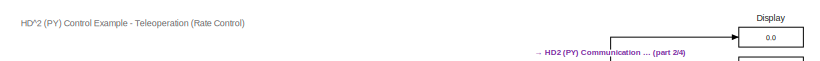
[diagram: root canvas - part 1/4, top left region]
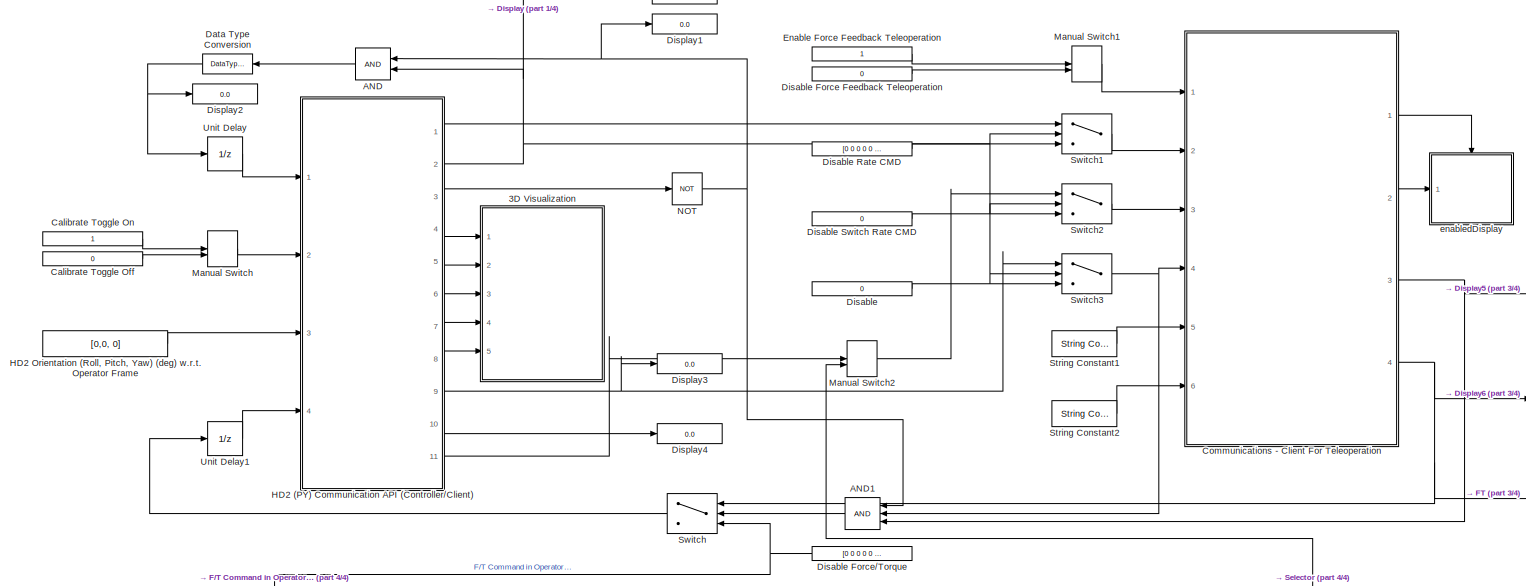
[diagram: root canvas - part 2/4, full width, top band]
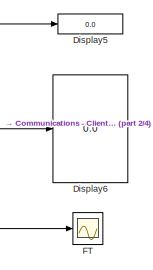
[diagram: root canvas - part 3/4, middle right region]
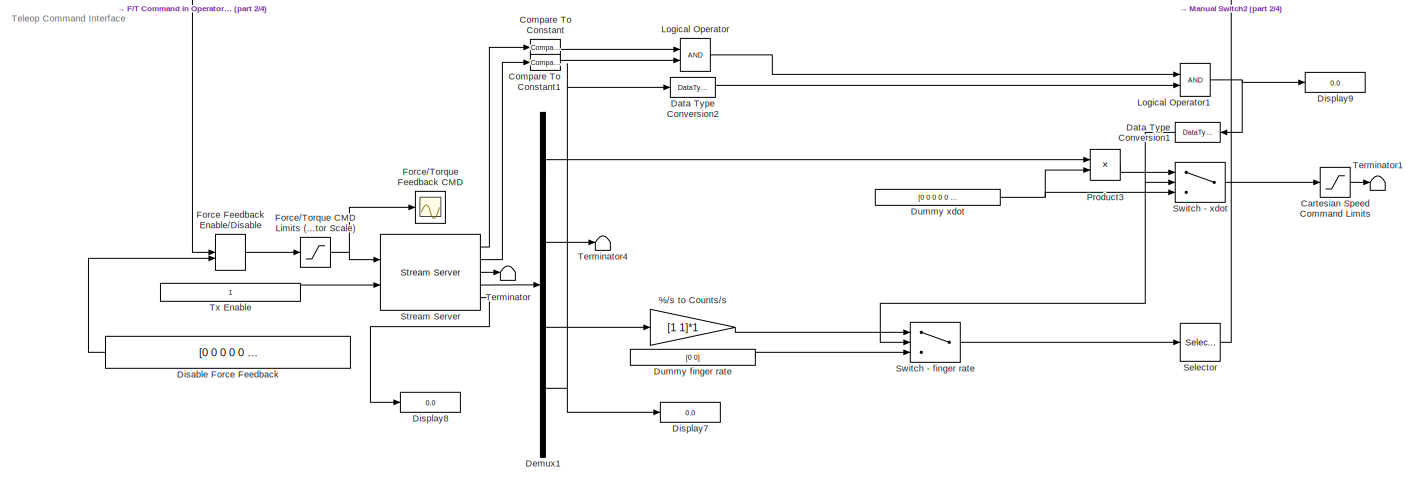
[diagram: root canvas - part 4/4, full width, bottom band]
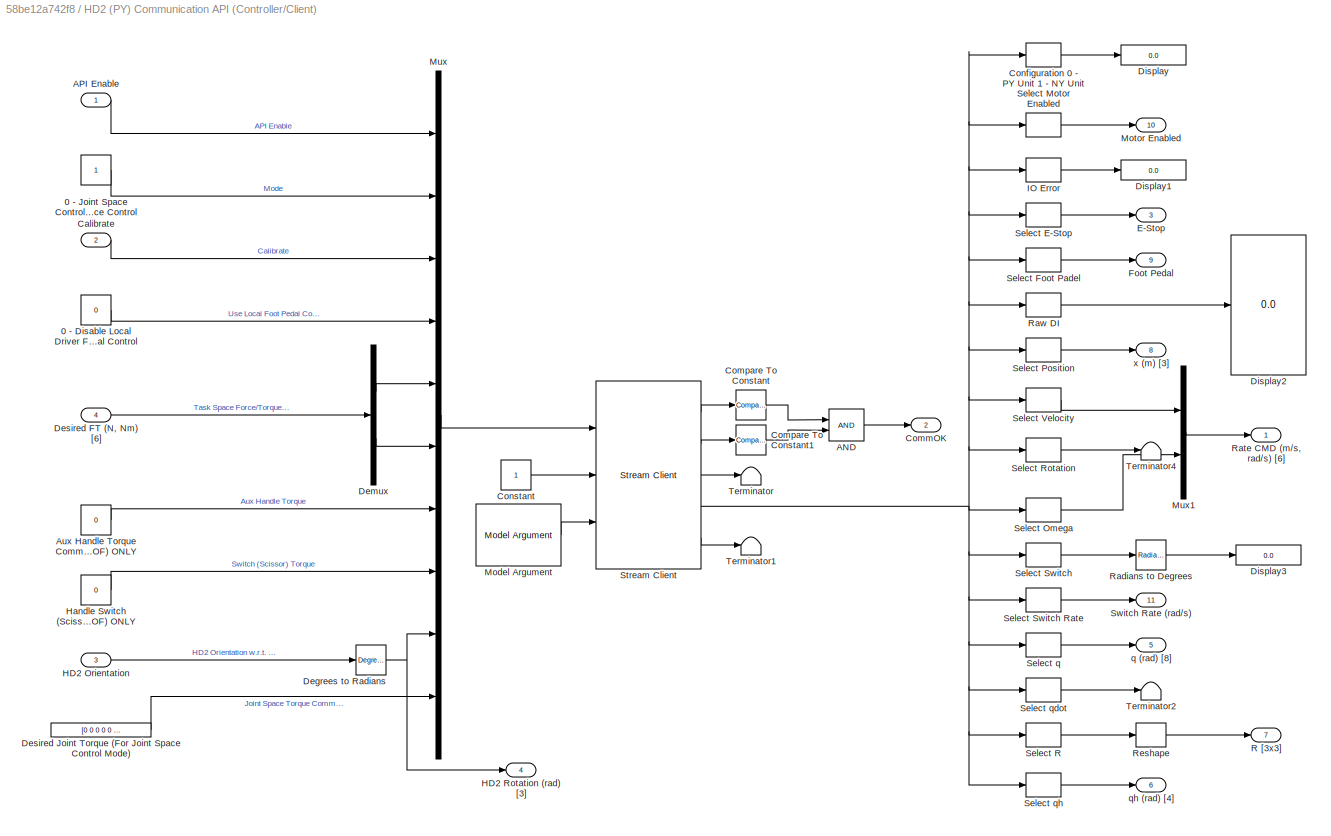
MODEL slx_58be12a742f8
KIND model
CONFIG AbsTol = auto
CONFIG EnableMultiTasking = on
CONFIG FixedStep = 0.001
CONFIG MaxStep = auto
CONFIG MinStep = auto
CONFIG RelTol = 1e-3
CONFIG SampleTimeConstraint = Unconstrained
CONFIG Solver = ode1
CONFIG SolverName = ode1
CONFIG StartTime = 0.0
CONFIG StopTime = inf
WORKSPACE source: MAT-file member
WORKSPACE MCOS: class17 (value not decoded)
BLOCK [Gain] %//s to Counts//s
  Gain = [1 1]*1
  OutDataTypeStr = Inherit: Inherit via internal rule
  ParamDataTypeStr = Inherit: Inherit via internal rule
  SaturateOnIntegerOverflow = off
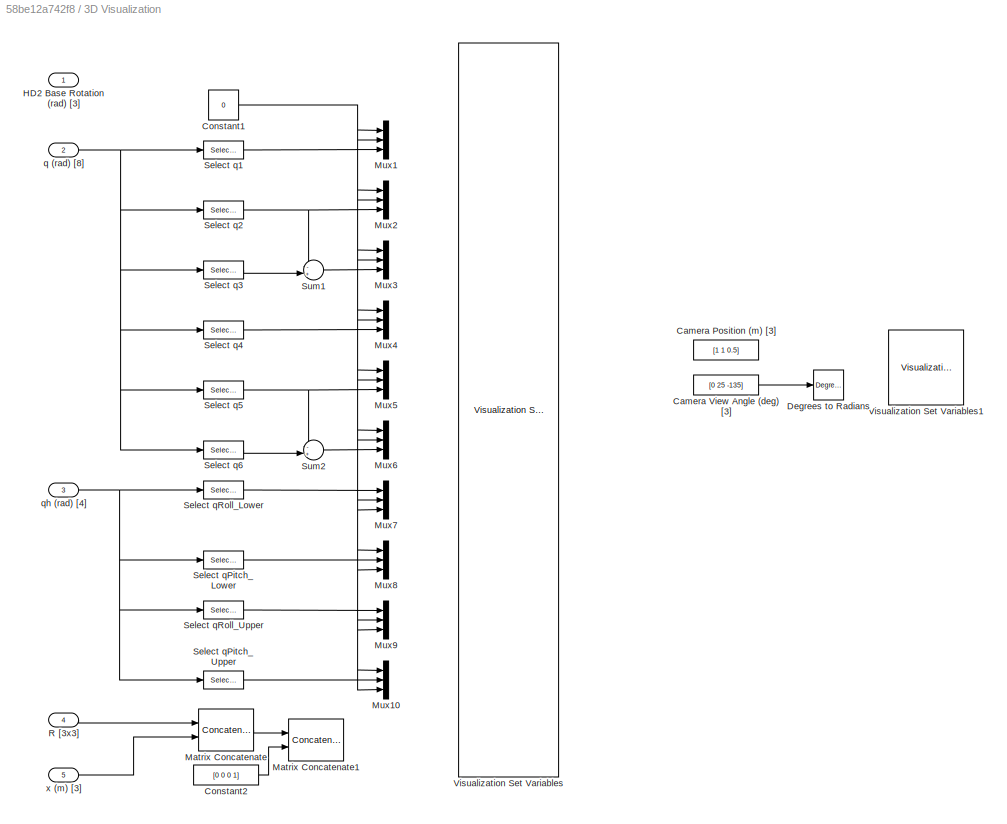
BLOCK [SubSystem] 3D Visualization
  Commented = on
  Ports = [5]
  RequestExecContextInheritance = off
BLOCK [Constant] 3D Visualization/Camera Position (m) [3]
  Value = [1 1 0.5]
  VectorParams1D = off
BLOCK [Constant] 3D Visualization/Camera View Angle (deg) [3]
  Value = [0 25 -135]
  VectorParams1D = off
BLOCK [Constant] 3D Visualization/Constant1
  Value = 0
BLOCK [Constant] 3D Visualization/Constant2
  Value = [0 0 0 1]
  VectorParams1D = off
BLOCK [Reference] 3D Visualization/Degrees to Radians  REF=simulink_extras/Transformations/Degrees to
Radians
  Ports = [1, 1]
  SourceBlock = simulink_extras/Transformations/Degrees to\nRadians
  SourceProductBaseCode = SL
  SourceType = DegreesToRadians
BLOCK [Inport] 3D Visualization/HD2 Base Rotation (rad) [3]
  IconDisplay = Port number
BLOCK [Concatenate] 3D Visualization/Matrix Concatenate
  ConcatenateDimension = 2
  Mode = Multidimensional array
  Ports = [2, 1]
BLOCK [Concatenate] 3D Visualization/Matrix Concatenate1
  Mode = Multidimensional array
  Ports = [2, 1]
BLOCK [Mux] 3D Visualization/Mux1
  DisplayOption = bar
  Inputs = 3
  Ports = [3, 1]
BLOCK [Mux] 3D Visualization/Mux10
  DisplayOption = bar
  Inputs = 3
  Ports = [3, 1]
BLOCK [Mux] 3D Visualization/Mux2
  DisplayOption = bar
  Inputs = 3
  Ports = [3, 1]
BLOCK [Mux] 3D Visualization/Mux3
  DisplayOption = bar
  Inputs = 3
  Ports = [3, 1]
BLOCK [Mux] 3D Visualization/Mux4
  DisplayOption = bar
  Inputs = 3
  Ports = [3, 1]
BLOCK [Mux] 3D Visualization/Mux5
  DisplayOption = bar
  Inputs = 3
  Ports = [3, 1]
BLOCK [Mux] 3D Visualization/Mux6
  DisplayOption = bar
  Inputs = 3
  Ports = [3, 1]
BLOCK [Mux] 3D Visualization/Mux7
  DisplayOption = bar
  Inputs = 3
  Ports = [3, 1]
BLOCK [Mux] 3D Visualization/Mux8
  DisplayOption = bar
  Inputs = 3
  Ports = [3, 1]
BLOCK [Mux] 3D Visualization/Mux9
  DisplayOption = bar
  Inputs = 3
  Ports = [3, 1]
BLOCK [Inport] 3D Visualization/R [3x3]
  IconDisplay = Port number
  Port = 4
BLOCK [Selector] 3D Visualization/Select q1
  IndexOptions = Index vector (dialog)
  Indices = [1]
  InputPortWidth = 8
  OutputSizes = 1
  Ports = [1, 1]
BLOCK [Selector] 3D Visualization/Select q2
  IndexOptions = Index vector (dialog)
  Indices = [2]
  InputPortWidth = 8
  OutputSizes = 1
  Ports = [1, 1]
BLOCK [Selector] 3D Visualization/Select q3
  IndexOptions = Index vector (dialog)
  Indices = [3]
  InputPortWidth = 8
  OutputSizes = 1
  Ports = [1, 1]
BLOCK [Selector] 3D Visualization/Select q4
  IndexOptions = Index vector (dialog)
  Indices = [4]
  InputPortWidth = 8
  OutputSizes = 1
  Ports = [1, 1]
BLOCK [Selector] 3D Visualization/Select q5
  IndexOptions = Index vector (dialog)
  Indices = [5]
  InputPortWidth = 8
  OutputSizes = 1
  Ports = [1, 1]
BLOCK [Selector] 3D Visualization/Select q6
  IndexOptions = Index vector (dialog)
  Indices = [6]
  InputPortWidth = 8
  OutputSizes = 1
  Ports = [1, 1]
BLOCK [Selector] 3D Visualization/Select qPitch_Lower
  IndexOptions = Index vector (dialog)
  Indices = [2]
  InputPortWidth = 4
  OutputSizes = 1
  Ports = [1, 1]
BLOCK [Selector] 3D Visualization/Select qPitch_Upper
  IndexOptions = Index vector (dialog)
  Indices = [4]
  InputPortWidth = 4
  OutputSizes = 1
  Ports = [1, 1]
BLOCK [Selector] 3D Visualization/Select qRoll_Lower
  IndexOptions = Index vector (dialog)
  Indices = [1]
  InputPortWidth = 4
  OutputSizes = 1
  Ports = [1, 1]
BLOCK [Selector] 3D Visualization/Select qRoll_Upper
  IndexOptions = Index vector (dialog)
  Indices = [3]
  InputPortWidth = 4
  OutputSizes = 1
  Ports = [1, 1]
BLOCK [Sum] 3D Visualization/Sum1
  IconShape = round
  InputSameDT = off
  Inputs = -+|
  OutDataTypeStr = Inherit: Inherit via internal rule
  Ports = [2, 1]
  SaturateOnIntegerOverflow = off
BLOCK [Sum] 3D Visualization/Sum2
  IconShape = round
  InputSameDT = off
  Inputs = -+|
  OutDataTypeStr = Inherit: Inherit via internal rule
  Ports = [2, 1]
  SaturateOnIntegerOverflow = off
BLOCK [Reference] 3D Visualization/Visualization Set Variables  REF=quarc_library/User Interface/Visualization/Visualization Set Variables
  AttributesFormatString = (%<object_name>)
  Ports = []
  SourceBlock = quarc_library/User Interface/Visualization/Visualization Set Variables
  SourceProductName = QUARC Targets
  SourceType = Visualization Set Variables
BLOCK [Reference] 3D Visualization/Visualization Set Variables1  REF=quarc_library/User Interface/Visualization/Visualization Set Variables
  AttributesFormatString = (%<object_name>)
  Ports = []
  SourceBlock = quarc_library/User Interface/Visualization/Visualization Set Variables
  SourceProductName = QUARC Targets
  SourceType = Visualization Set Variables
BLOCK [Inport] 3D Visualization/q (rad) [8]
  IconDisplay = Port number
  Port = 2
BLOCK [Inport] 3D Visualization/qh (rad) [4]
  IconDisplay = Port number
  Port = 3
BLOCK [Inport] 3D Visualization/x (m) [3]
  IconDisplay = Port number
  Port = 5
BLOCK [Logic] AND
  AllPortsSameDT = off
  IconShape = distinctive
  OutDataTypeStr = boolean
  Ports = [2, 1]
BLOCK [Logic] AND1
  AllPortsSameDT = off
  IconShape = distinctive
  Inputs = 3
  OutDataTypeStr = boolean
  Ports = [3, 1]
BLOCK [Constant] Calibrate Toggle Off
  Value = 0
BLOCK [Constant] Calibrate Toggle On
BLOCK [Saturate] Cartesian Speed Command Limits
  InputPortMap = u0
  LowerLimit = -1*[0.254 0.254 0.254 0.06 0.06 0.06]
  Ports = [1, 1]
  UpperLimit = [0.254 0.254 0.254 0.06 0.06 0.06]
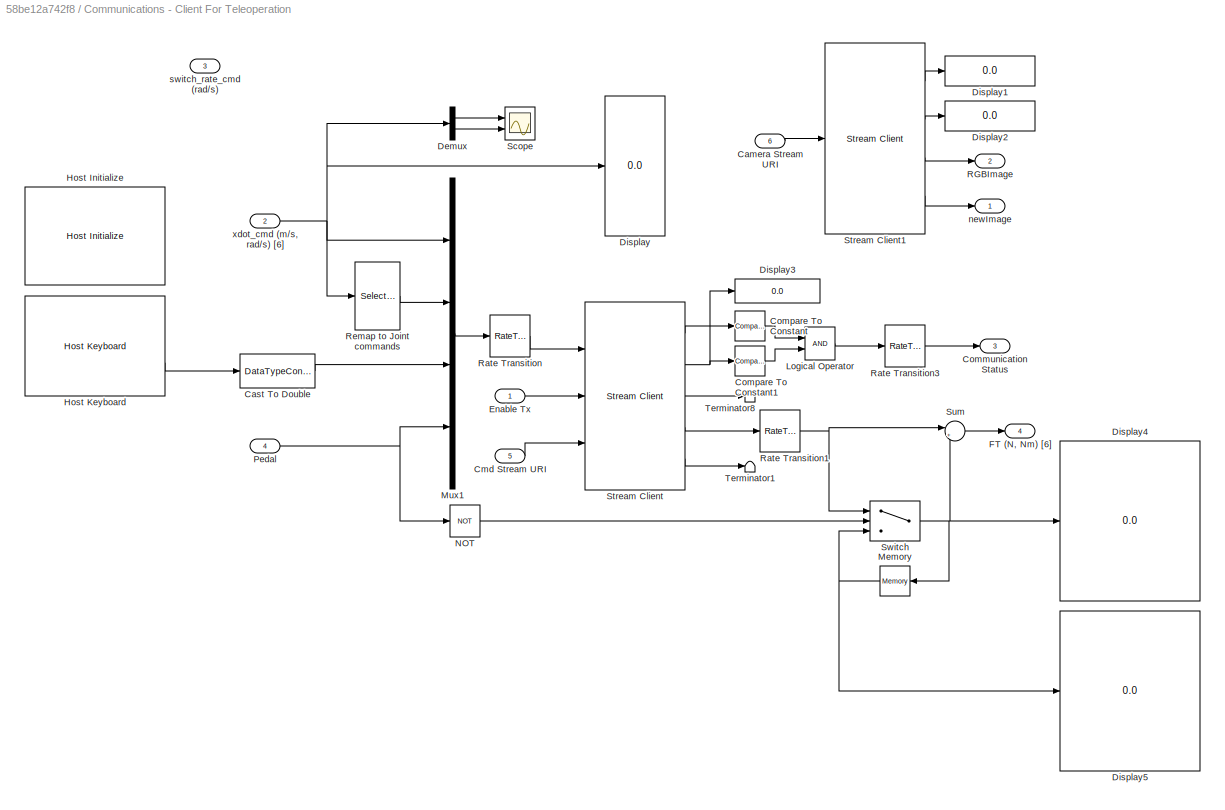
BLOCK [SubSystem] Communications - Client For Teleoperation
  Ports = [6, 4]
  RequestExecContextInheritance = off
BLOCK [Inport] Communications - Client For Teleoperation/Camera Stream URI
  IconDisplay = Port number
  Port = 6
BLOCK [DataTypeConversion] Communications - Client For Teleoperation/Cast To Double
  OutDataTypeStr = double
  RndMeth = Floor
  SaturateOnIntegerOverflow = off
BLOCK [Inport] Communications - Client For Teleoperation/Cmd Stream URI
  IconDisplay = Port number
  Port = 5
BLOCK [Outport] Communications - Client For Teleoperation/Communication Status
  IconDisplay = Port number
  Port = 3
BLOCK [Reference] Communications - Client For Teleoperation/Compare To Constant  REF=simulink/Logic and Bit
Operations/Compare
To Constant
  Ports = [1, 1]
  SourceBlock = simulink/Logic and Bit\nOperations/Compare\nTo Constant
  SourceProductBaseCode = SL
  SourceType = Compare To Constant
BLOCK [Reference] Communications - Client For Teleoperation/Compare To Constant1  REF=simulink/Logic and Bit
Operations/Compare
To Constant
  Ports = [1, 1]
  SourceBlock = simulink/Logic and Bit\nOperations/Compare\nTo Constant
  SourceProductBaseCode = SL
  SourceType = Compare To Constant
BLOCK [Demux] Communications - Client For Teleoperation/Demux
  DisplayOption = bar
  Outputs = 2
  Ports = [1, 2]
BLOCK [Display] Communications - Client For Teleoperation/Display
  Decimation = 1
  Ports = [1]
BLOCK [Display] Communications - Client For Teleoperation/Display1
  Decimation = 1
  Ports = [1]
BLOCK [Display] Communications - Client For Teleoperation/Display2
  Decimation = 1
  Ports = [1]
BLOCK [Display] Communications - Client For Teleoperation/Display3
  Decimation = 500
  Ports = [1]
BLOCK [Display] Communications - Client For Teleoperation/Display4
  Decimation = 1
  Ports = [1]
BLOCK [Display] Communications - Client For Teleoperation/Display5
  Decimation = 1
  Ports = [1]
BLOCK [Inport] Communications - Client For Teleoperation/Enable Tx
  IconDisplay = Port number
BLOCK [Outport] Communications - Client For Teleoperation/FT (N, Nm) [6]
  IconDisplay = Port number
  Port = 4
BLOCK [Reference] Communications - Client For Teleoperation/Host Initialize  REF=quarc_library/Devices/Peripherals/Host/Host Initialize
  Ports = [0, 2]
  SourceBlock = quarc_library/Devices/Peripherals/Host/Host Initialize
  SourceProductName = QUARC Targets
  SourceType = Host Initialize
BLOCK [Reference] Communications - Client For Teleoperation/Host Keyboard  REF=quarc_library/Devices/Peripherals/Host/Host Keyboard
  Ports = [0, 2]
  SourceBlock = quarc_library/Devices/Peripherals/Host/Host Keyboard
  SourceProductName = QUARC Targets
  SourceType = Host Keyboard
BLOCK [Logic] Communications - Client For Teleoperation/Logical Operator
  AllPortsSameDT = off
  OutDataTypeStr = boolean
  Ports = [2, 1]
BLOCK [Reference] Communications - Client For Teleoperation/Memory  REF=quarc_library/Discrete/Memory
  Ports = [1, 1]
  SourceBlock = quarc_library/Discrete/Memory
  SourceProductName = QUARC Targets
  SourceType = Memory
BLOCK [Mux] Communications - Client For Teleoperation/Mux1
  DisplayOption = bar
  Inputs = [6 6 1 1]
  Ports = [4, 1]
BLOCK [Logic] Communications - Client For Teleoperation/NOT
  AllPortsSameDT = off
  IconShape = distinctive
  Operator = NOT
  OutDataTypeStr = boolean
  Ports = [1, 1]
BLOCK [Inport] Communications - Client For Teleoperation/Pedal
  IconDisplay = Port number
  Port = 4
BLOCK [Outport] Communications - Client For Teleoperation/RGBImage
  IconDisplay = Port number
  Port = 2
BLOCK [RateTransition] Communications - Client For Teleoperation/Rate Transition
BLOCK [RateTransition] Communications - Client For Teleoperation/Rate Transition1
BLOCK [RateTransition] Communications - Client For Teleoperation/Rate Transition3
BLOCK [Selector] Communications - Client For Teleoperation/Remap to Joint commands
  IndexOptions = Index vector (dialog)
  Indices = [2,1,3,4,5,6]
  InputPortWidth = 6
  OutputSizes = 1
  Ports = [1, 1]
BLOCK [Scope] Communications - Client For Teleoperation/Scope
  Floating = off
  NumInputPorts = 2
  Ports = [2]
  ScopeSpecificationString = Simulink.scopes.TimeScopeBlockCfg('CurrentConfiguration', extmgr.ConfigurationSet(extmgr.Configuration('Core','General UI',true),extmgr.Configuration('Core','Source UI',true),extmgr.Configuration('Sources','WiredSimulink',true,'DataLoggingVariableName','ScopeData1'),extmgr.Configuration('Visuals','Time Domain',true,'SerializedDisplays',{struct('MinYLimReal','-0.0000000000000061','MaxYLimReal','0.0...<+2142ch>
BLOCK [Reference] Communications - Client For Teleoperation/Stream Client  REF=quarc_library/Communications/Basic/Stream Client
  Ports = [3, 5]
  SourceBlock = quarc_library/Communications/Basic/Stream Client
  SourceProductName = QUARC Targets
  SourceType = Stream Client
BLOCK [Reference] Communications - Client For Teleoperation/Stream Client1  REF=quarc_library/Communications/Basic/Stream Client
  Ports = [1, 4]
  SourceBlock = quarc_library/Communications/Basic/Stream Client
  SourceProductName = QUARC Targets
  SourceType = Stream Client
BLOCK [Sum] Communications - Client For Teleoperation/Sum
  IconShape = round
  InputSameDT = off
  Inputs = |+-
  OutDataTypeStr = Inherit: Inherit via internal rule
  Ports = [2, 1]
  SaturateOnIntegerOverflow = off
BLOCK [Switch] Communications - Client For Teleoperation/Switch
  Criteria = u2 ~= 0
  InputSameDT = off
  SaturateOnIntegerOverflow = off
BLOCK [Terminator] Communications - Client For Teleoperation/Terminator1
BLOCK [Terminator] Communications - Client For Teleoperation/Terminator8
BLOCK [Outport] Communications - Client For Teleoperation/newImage
  IconDisplay = Port number
BLOCK [Inport] Communications - Client For Teleoperation/switch_rate_cmd (rad//s)
  IconDisplay = Port number
  Port = 3
BLOCK [Inport] Communications - Client For Teleoperation/xdot_cmd (m//s, rad//s) [6]
  IconDisplay = Port number
  Port = 2
BLOCK [Reference] Compare To Constant  REF=simulink/Logic and Bit
Operations/Compare
To Constant
  Ports = [1, 1]
  SourceBlock = simulink/Logic and Bit\nOperations/Compare\nTo Constant
  SourceProductBaseCode = SL
  SourceType = Compare To Constant
BLOCK [Reference] Compare To Constant1  REF=simulink/Logic and Bit
Operations/Compare
To Constant
  Ports = [1, 1]
  SourceBlock = simulink/Logic and Bit\nOperations/Compare\nTo Constant
  SourceProductBaseCode = SL
  SourceType = Compare To Constant
BLOCK [DataTypeConversion] Data Type Conversion
  OutDataTypeStr = double
  RndMeth = Floor
  SaturateOnIntegerOverflow = off
BLOCK [DataTypeConversion] Data Type Conversion1
  RndMeth = Floor
  SaturateOnIntegerOverflow = off
BLOCK [DataTypeConversion] Data Type Conversion2
  RndMeth = Floor
  SaturateOnIntegerOverflow = off
BLOCK [Demux] Demux1
  DisplayOption = bar
  Outputs = [6 6 1 1]
  Ports = [1, 4]
BLOCK [Constant] Disable
  Value = 0
BLOCK [Constant] Disable Force Feedback
  Value = [0 0 0 0 0 0]
BLOCK [Constant] Disable Force Feedback Teleoperation
  Value = 0
BLOCK [Constant] Disable Force//Torque
  Value = [0 0 0 0 0 0]
BLOCK [Constant] Disable Rate CMD
  Value = [0 0 0 0 0 0]
BLOCK [Constant] Disable Switch Rate CMD
  Value = 0
BLOCK [Display] Display
  Decimation = 100
  Ports = [1]
BLOCK [Display] Display1
  Decimation = 100
  Ports = [1]
BLOCK [Display] Display2
  Decimation = 100
  Ports = [1]
BLOCK [Display] Display3
  Decimation = 100
  Ports = [1]
BLOCK [Display] Display4
  Decimation = 100
  Ports = [1]
BLOCK [Display] Display5
  Decimation = 100
  Ports = [1]
BLOCK [Display] Display6
  Decimation = 1
  Ports = [1]
BLOCK [Display] Display7
  Decimation = 100
  Ports = [1]
BLOCK [Display] Display8
  Decimation = 100
  Ports = [1]
BLOCK [Display] Display9
  Decimation = 100
  Ports = [1]
BLOCK [Constant] Dummy finger rate
  Value = [0 0]
BLOCK [Constant] Dummy xdot
  Value = [0 0 0 0 0 0]
BLOCK [Constant] Enable Force Feedback Teleoperation
BLOCK [Scope] FT
  Floating = off
  NumInputPorts = 1
  Ports = [1]
  ScopeSpecificationString = Simulink.scopes.TimeScopeBlockCfg('CurrentConfiguration', extmgr.ConfigurationSet(extmgr.Configuration('Core','General UI',true),extmgr.Configuration('Core','Source UI',true),extmgr.Configuration('Sources','WiredSimulink',true,'DataLoggingVariableName','ScopeData1'),extmgr.Configuration('Visuals','Time Domain',true,'SerializedDisplays',{struct('MinYLimReal','-2.22488','MaxYLimReal','0.58958','YLab...<+1386ch>
BLOCK [ManualSwitch] Force Feedback Enable//Disable
  CurrentSetting = 0
BLOCK [Saturate] Force//Torque CMD Limits (Operator Scale)
  InputPortMap = u0
  LowerLimit = -1*[3 3 3 0.2 0.2 0.2]
  Ports = [1, 1]
  UpperLimit = [3 3 3 0.2 0.2 0.2]
BLOCK [Scope] Force//Torque Feedback CMD
  Floating = off
  NumInputPorts = 1
  Ports = [1]
  ScopeSpecificationString = Simulink.scopes.TimeScopeBlockCfg('CurrentConfiguration', extmgr.ConfigurationSet(extmgr.Configuration('Core','General UI',true),extmgr.Configuration('Core','Source UI',true),extmgr.Configuration('Sources','WiredSimulink',true,'DataLoggingVariableName','ScopeData2'),extmgr.Configuration('Visuals','Time Domain',true,'SerializedDisplays',{struct('MinYLimReal','-0.24273','MaxYLimReal','0.17479','YLab...<+1430ch>
BLOCK [SubSystem] HD2 (PY) Communication API (Controller//Client)
  Ports = [4, 11]
  RequestExecContextInheritance = off
BLOCK [Constant] HD2 (PY) Communication API (Controller//Client)/0 - Disable Local Driver Foot Pedal Control 1 - Enable Local Driver Foot Pedal Control
  Value = 0
BLOCK [Constant] HD2 (PY) Communication API (Controller//Client)/0 - Joint Space Control 1 - Task Space Control
BLOCK [Logic] HD2 (PY) Communication API (Controller//Client)/AND
  AllPortsSameDT = off
  IconShape = distinctive
  OutDataTypeStr = boolean
  Ports = [2, 1]
BLOCK [Inport] HD2 (PY) Communication API (Controller//Client)/API Enable
  IconDisplay = Port number
BLOCK [Constant] HD2 (PY) Communication API (Controller//Client)/Aux Handle Torque Command (Nm) Mode 1 (6-DOF or 7-DOF) ONLY
  Value = 0
BLOCK [Inport] HD2 (PY) Communication API (Controller//Client)/Calibrate
  IconDisplay = Port number
  Port = 2
BLOCK [Outport] HD2 (PY) Communication API (Controller//Client)/CommOK
  IconDisplay = Port number
  Port = 2
BLOCK [Reference] HD2 (PY) Communication API (Controller//Client)/Compare To Constant  REF=simulink/Logic and Bit
Operations/Compare
To Constant
  Ports = [1, 1]
  SourceBlock = simulink/Logic and Bit\nOperations/Compare\nTo Constant
  SourceProductBaseCode = SL
  SourceType = Compare To Constant
BLOCK [Reference] HD2 (PY) Communication API (Controller//Client)/Compare To Constant1  REF=simulink/Logic and Bit
Operations/Compare
To Constant
  Ports = [1, 1]
  SourceBlock = simulink/Logic and Bit\nOperations/Compare\nTo Constant
  SourceProductBaseCode = SL
  SourceType = Compare To Constant
BLOCK [Selector] HD2 (PY) Communication API (Controller//Client)/Configuration 0 - PY Unit 1 - NY Unit
  IndexOptions = Index vector (dialog)
  Indices = [1]
  InputPortWidth = 56
  OutputSizes = 1
  Ports = [1, 1]
BLOCK [Constant] HD2 (PY) Communication API (Controller//Client)/Constant
BLOCK [Reference] HD2 (PY) Communication API (Controller//Client)/Degrees to Radians  REF=simulink_extras/Transformations/Degrees to
Radians
  Ports = [1, 1]
  SourceBlock = simulink_extras/Transformations/Degrees to\nRadians
  SourceProductBaseCode = SL
  SourceType = DegreesToRadians
BLOCK [Demux] HD2 (PY) Communication API (Controller//Client)/Demux
  DisplayOption = bar
  Outputs = [3 3]
  Ports = [1, 2]
BLOCK [Inport] HD2 (PY) Communication API (Controller//Client)/Desired FT (N, Nm) [6]
  IconDisplay = Port number
  Port = 4
BLOCK [Constant] HD2 (PY) Communication API (Controller//Client)/Desired Joint Torque (For Joint Space Control Mode)
  Value = [0 0 0 0 0 0 0 0]
BLOCK [Display] HD2 (PY) Communication API (Controller//Client)/Display
  Decimation = 100
  Ports = [1]
BLOCK [Display] HD2 (PY) Communication API (Controller//Client)/Display1
  Decimation = 100
  Ports = [1]
BLOCK [Display] HD2 (PY) Communication API (Controller//Client)/Display2
  Decimation = 100
  Ports = [1]
BLOCK [Display] HD2 (PY) Communication API (Controller//Client)/Display3
  Decimation = 100
  Ports = [1]
BLOCK [Outport] HD2 (PY) Communication API (Controller//Client)/E-Stop
  IconDisplay = Port number
  Port = 3
BLOCK [Outport] HD2 (PY) Communication API (Controller//Client)/Foot Pedal
  IconDisplay = Port number
  Port = 9
BLOCK [Inport] HD2 (PY) Communication API (Controller//Client)/HD2 Orientation
  IconDisplay = Port number
  Port = 3
BLOCK [Outport] HD2 (PY) Communication API (Controller//Client)/HD2 Rotation (rad) [3]
  IconDisplay = Port number
  Port = 4
BLOCK [Constant] HD2 (PY) Communication API (Controller//Client)/Handle Switch (Scissor) Torque Command (Nm) Mode 1 (7-DOF) ONLY
  Value = 0
BLOCK [Selector] HD2 (PY) Communication API (Controller//Client)/IO Error
  IndexOptions = Index vector (dialog)
  Indices = [3]
  InputPortWidth = 56
  OutputSizes = 1
  Ports = [1, 1]
BLOCK [Reference] HD2 (PY) Communication API (Controller//Client)/Model Argument  REF=quarc_library/Sources/Signals/Model Argument
  AttributesFormatString = (-%<argument_name>)
  Ports = [0, 1]
  SourceBlock = quarc_library/Sources/Signals/Model Argument
  SourceProductName = QUARC Targets
  SourceType = Model Argument
BLOCK [Outport] HD2 (PY) Communication API (Controller//Client)/Motor Enabled
  IconDisplay = Port number
  Port = 10
BLOCK [Mux] HD2 (PY) Communication API (Controller//Client)/Mux
  DisplayOption = bar
  Inputs = [1 1 1 1 3 3 1 1 3 8]
  Ports = [10, 1]
BLOCK [Mux] HD2 (PY) Communication API (Controller//Client)/Mux1
  DisplayOption = bar
  Inputs = 2
  Ports = [2, 1]
BLOCK [Outport] HD2 (PY) Communication API (Controller//Client)/R [3x3]
  IconDisplay = Port number
  Port = 7
BLOCK [Reference] HD2 (PY) Communication API (Controller//Client)/Radians to Degrees  REF=simulink_extras/Transformations/Radians
to Degrees
  Ports = [1, 1]
  SourceBlock = simulink_extras/Transformations/Radians\nto Degrees
  SourceProductBaseCode = SL
  SourceType = RadiansToDegrees
BLOCK [Outport] HD2 (PY) Communication API (Controller//Client)/Rate CMD (m//s, rad//s) [6]
  IconDisplay = Port number
BLOCK [Selector] HD2 (PY) Communication API (Controller//Client)/Raw DI
  IndexOptions = Index vector (dialog)
  Indices = [6:13]
  InputPortWidth = 56
  OutputSizes = 1
  Ports = [1, 1]
BLOCK [Reshape] HD2 (PY) Communication API (Controller//Client)/Reshape
  OutputDimensionality = Customize
  OutputDimensions = [3,3]
  Ports = [1, 1]
BLOCK [Selector] HD2 (PY) Communication API (Controller//Client)/Select E-Stop
  IndexOptions = Index vector (dialog)
  Indices = [4]
  InputPortWidth = 56
  OutputSizes = 1
  Ports = [1, 1]
BLOCK [Selector] HD2 (PY) Communication API (Controller//Client)/Select Foot Padel
  IndexOptions = Index vector (dialog)
  Indices = [5]
  InputPortWidth = 56
  OutputSizes = 1
  Ports = [1, 1]
BLOCK [Selector] HD2 (PY) Communication API (Controller//Client)/Select Motor Enabled
  IndexOptions = Index vector (dialog)
  Indices = [2]
  InputPortWidth = 56
  OutputSizes = 1
  Ports = [1, 1]
BLOCK [Selector] HD2 (PY) Communication API (Controller//Client)/Select Omega
  IndexOptions = Index vector (dialog)
  Indices = [23:25]
  InputPortWidth = 56
  OutputSizes = 1
  Ports = [1, 1]
BLOCK [Selector] HD2 (PY) Communication API (Controller//Client)/Select Position
  IndexOptions = Index vector (dialog)
  Indices = [14:16]
  InputPortWidth = 56
  OutputSizes = 1
  Ports = [1, 1]
BLOCK [Selector] HD2 (PY) Communication API (Controller//Client)/Select R
  IndexOptions = Index vector (dialog)
  Indices = [44:52]
  InputPortWidth = 56
  OutputSizes = 1
  Ports = [1, 1]
BLOCK [Selector] HD2 (PY) Communication API (Controller//Client)/Select Rotation
  IndexOptions = Index vector (dialog)
  Indices = [20:22]
  InputPortWidth = 56
  OutputSizes = 1
  Ports = [1, 1]
BLOCK [Selector] HD2 (PY) Communication API (Controller//Client)/Select Switch
  IndexOptions = Index vector (dialog)
  Indices = [26]
  InputPortWidth = 56
  OutputSizes = 1
  Ports = [1, 1]
BLOCK [Selector] HD2 (PY) Communication API (Controller//Client)/Select Switch Rate
  IndexOptions = Index vector (dialog)
  Indices = [27]
  InputPortWidth = 56
  OutputSizes = 1
  Ports = [1, 1]
BLOCK [Selector] HD2 (PY) Communication API (Controller//Client)/Select Velocity
  IndexOptions = Index vector (dialog)
  Indices = [17:19]
  InputPortWidth = 56
  OutputSizes = 1
  Ports = [1, 1]
BLOCK [Selector] HD2 (PY) Communication API (Controller//Client)/Select q
  IndexOptions = Index vector (dialog)
  Indices = [28:35]
  InputPortWidth = 56
  OutputSizes = 1
  Ports = [1, 1]
BLOCK [Selector] HD2 (PY) Communication API (Controller//Client)/Select qdot
  IndexOptions = Index vector (dialog)
  Indices = [36:43]
  InputPortWidth = 56
  OutputSizes = 1
  Ports = [1, 1]
BLOCK [Selector] HD2 (PY) Communication API (Controller//Client)/Select qh
  IndexOptions = Index vector (dialog)
  Indices = [53:56]
  InputPortWidth = 56
  OutputSizes = 1
  Ports = [1, 1]
BLOCK [Reference] HD2 (PY) Communication API (Controller//Client)/Stream Client  REF=quarc_library/Communications/Basic/Stream Client
  Ports = [3, 5]
  SourceBlock = quarc_library/Communications/Basic/Stream Client
  SourceProductName = QUARC Targets
  SourceType = Stream Client
BLOCK [Outport] HD2 (PY) Communication API (Controller//Client)/Switch Rate (rad//s)
  IconDisplay = Port number
  Port = 11
BLOCK [Terminator] HD2 (PY) Communication API (Controller//Client)/Terminator
BLOCK [Terminator] HD2 (PY) Communication API (Controller//Client)/Terminator1
BLOCK [Terminator] HD2 (PY) Communication API (Controller//Client)/Terminator2
BLOCK [Terminator] HD2 (PY) Communication API (Controller//Client)/Terminator4
BLOCK [Outport] HD2 (PY) Communication API (Controller//Client)/q (rad) [8]
  IconDisplay = Port number
  Port = 5
BLOCK [Outport] HD2 (PY) Communication API (Controller//Client)/qh (rad) [4]
  IconDisplay = Port number
  Port = 6
BLOCK [Outport] HD2 (PY) Communication API (Controller//Client)/x (m) [3]
  IconDisplay = Port number
  Port = 8
BLOCK [Constant] HD2 Orientation (Roll, Pitch, Yaw) (deg) w.r.t. Operator Frame
  Value = [0,0, 0]
BLOCK [Logic] Logical Operator
  AllPortsSameDT = off
  OutDataTypeStr = boolean
  Ports = [2, 1]
BLOCK [Logic] Logical Operator1
  AllPortsSameDT = off
  OutDataTypeStr = boolean
  Ports = [2, 1]
BLOCK [ManualSwitch] Manual Switch
  CurrentSetting = 0
BLOCK [ManualSwitch] Manual Switch1
BLOCK [ManualSwitch] Manual Switch2
  CurrentSetting = 0
BLOCK [Logic] NOT
  AllPortsSameDT = off
  IconShape = distinctive
  Operator = NOT
  OutDataTypeStr = boolean
  Ports = [1, 1]
BLOCK [Product] Product3
  InputSameDT = off
  OutDataTypeStr = Inherit: Inherit via internal rule
  Ports = [2, 1]
  RndMeth = Floor
  SaturateOnIntegerOverflow = off
BLOCK [Selector] Selector
  IndexOptions = Index vector (dialog)
  Indices = [1]
  InputPortWidth = 2
  OutputSizes = 1
  Ports = [1, 1]
BLOCK [Reference] Stream Server  REF=quarc_library/Communications/Basic/Stream Server
  AttributesFormatString = "tcpip://localhost:18008"
  Ports = [2, 5]
  SourceBlock = quarc_library/Communications/Basic/Stream Server
  SourceProductName = QUARC Targets
  SourceType = Stream Server
BLOCK [Reference] String Constant1  REF=quarc_library/Strings/String Constant
  AttributesFormatString = "tcpip://localhost:18018"
  Ports = [0, 1]
  SourceBlock = quarc_library/Strings/String Constant
  SourceProductName = QUARC Targets
  SourceType = String Constant
BLOCK [Reference] String Constant2  REF=quarc_library/Strings/String Constant
  AttributesFormatString = "tcpip://localhost:18025"
  Ports = [0, 1]
  SourceBlock = quarc_library/Strings/String Constant
  SourceProductName = QUARC Targets
  SourceType = String Constant
BLOCK [Switch] Switch
  Criteria = u2 > Threshold
  InputSameDT = off
  SaturateOnIntegerOverflow = off
  Threshold = 0.5
BLOCK [Switch] Switch - finger rate
  Criteria = u2 ~= 0
  InputSameDT = off
  SaturateOnIntegerOverflow = off
BLOCK [Switch] Switch - xdot
  Criteria = u2 ~= 0
  InputSameDT = off
  SaturateOnIntegerOverflow = off
BLOCK [Switch] Switch1
  Criteria = u2 ~= 0
  InputSameDT = off
  SaturateOnIntegerOverflow = off
  Threshold = 0.5
BLOCK [Switch] Switch2
  Criteria = u2 ~= 0
  InputSameDT = off
  SaturateOnIntegerOverflow = off
  Threshold = 0.5
BLOCK [Switch] Switch3
  Criteria = u2 ~= 0
  InputSameDT = off
  SaturateOnIntegerOverflow = off
  Threshold = 0.5
BLOCK [Terminator] Terminator
BLOCK [Terminator] Terminator1
BLOCK [Terminator] Terminator4
BLOCK [Constant] Tx Enable
BLOCK [UnitDelay] Unit Delay
  InputProcessing = Elements as channels (sample based)
  SampleTime = -1
BLOCK [UnitDelay] Unit Delay1
  InputProcessing = Elements as channels (sample based)
  SampleTime = -1
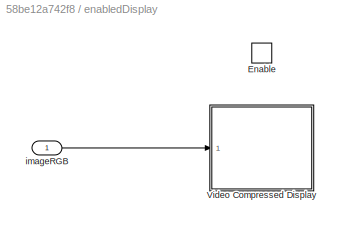
BLOCK [SubSystem] enabledDisplay
  Ports = [1, 0, 1]
  RequestExecContextInheritance = off
  TreatAsAtomicUnit = on
BLOCK [EnablePort] enabledDisplay/Enable
  Ports = []
  PropagateVarSize = During execution
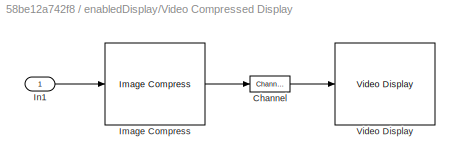
BLOCK [SubSystem] enabledDisplay/Video Compressed Display
  CopyFcn = set_param(gcbh, 'UserData', gcb);\nset_param(gcbh, 'LinkStatus', 'none');
  LoadFcn = set_param(gcbh, 'UserData', gcb);
  NameChangeFcn = video_display_show([get_param(gcbh, 'UserData'), '/Video Display'], 'rename', [gcb, '/Video Display']);\nvideo_display_show([gcb, '/Video Display'], 'add', gcb);\nset_param(gcbh, 'UserData', gcb);
  OpenFcn = video_display_show([gcb, '/Video Display'], 'show', gcb);
  Ports = [1]
  PreDeleteFcn = video_display_show([gcb, '/Video Display'], 'delete');
  RequestExecContextInheritance = off
  StartFcn = video_display_show([gcb, '/Video Display'], 'add', gcb);
  UndoDeleteFcn = set_param(gcbh, 'UserData', gcb);
BLOCK [Reference] enabledDisplay/Video Compressed Display/Channel  REF=quarc_library/Signal Routing/Channel
  Ports = [1, 1]
  SourceBlock = quarc_library/Signal Routing/Channel
  SourceProductName = QUARC Targets
  SourceType = Channel
BLOCK [Reference] enabledDisplay/Video Compressed Display/Image Compress  REF=quarc_library/Image Processing/Generic/Image Compress
  AttributesFormatString = (%<algorithm>)
  Ports = [1, 1]
  SourceBlock = quarc_library/Image Processing/Generic/Image Compress
  SourceProductName = QUARC Targets
  SourceType = Image Compress
BLOCK [Inport] enabledDisplay/Video Compressed Display/In1
  IconDisplay = Port number
BLOCK [Reference] enabledDisplay/Video Compressed Display/Video Display  REF=quarc_library/Multimedia/Video Display
  Ports = [1]
  SourceBlock = quarc_library/Multimedia/Video Display
  SourceProductName = QUARC Targets
  SourceType = Video Display
  Tag = HD2_QArmTeleopClient/enabledDisplay/Video Compressed\nDisplay/Video Display
  UserDataPersistent = on
BLOCK [Inport] enabledDisplay/imageRGB
  IconDisplay = Port number
ANNOTATION (root): HD^2 (PY) Control Example - Teleoperation (Rate Control)
ANNOTATION (root): Teleop Command Interface
LINE %//s to Counts//s:1 -> Switch - finger rate:1
LINE 3D Visualization/Camera View Angle (deg) [3]:1 -> 3D Visualization/Degrees to Radians:1
NET 3D Visualization/Constant1:1 -> 3D Visualization/Mux10:1, 3D Visualization/Mux10:3, 3D Visualization/Mux1:1, 3D Visualization/Mux1:2, 3D Visualization/Mux2:1, 3D Visualization/Mux2:2, 3D Visualization/Mux3:1, 3D Visualization/Mux3:2, 3D Visualization/Mux4:1, 3D Visualization/Mux4:2, 3D Visualization/Mux5:1, 3D Visualization/Mux5:2, 3D Visualization/Mux6:1, 3D Visualization/Mux6:2, 3D Visualization/Mux7:2, 3D Visualization/Mux7:3, 3D Visualization/Mux8:1, 3D Visualization/Mux8:3, 3D Visualization/Mux9:2, 3D Visualization/Mux9:3
LINE 3D Visualization/Constant2:1 -> 3D Visualization/Matrix Concatenate1:2
LINE 3D Visualization/Matrix Concatenate:1 -> 3D Visualization/Matrix Concatenate1:1
LINE 3D Visualization/R [3x3]:1 -> 3D Visualization/Matrix Concatenate:1
LINE 3D Visualization/Select q1:1 -> 3D Visualization/Mux1:3
NET 3D Visualization/Select q2:1 -> 3D Visualization/Mux2:3, 3D Visualization/Sum1:1
LINE 3D Visualization/Select q3:1 -> 3D Visualization/Sum1:2
LINE 3D Visualization/Select q4:1 -> 3D Visualization/Mux4:3
NET 3D Visualization/Select q5:1 -> 3D Visualization/Mux5:3, 3D Visualization/Sum2:1
LINE 3D Visualization/Select q6:1 -> 3D Visualization/Sum2:2
LINE 3D Visualization/Select qPitch_Lower:1 -> 3D Visualization/Mux8:2
LINE 3D Visualization/Select qPitch_Upper:1 -> 3D Visualization/Mux10:2
LINE 3D Visualization/Select qRoll_Lower:1 -> 3D Visualization/Mux7:1
LINE 3D Visualization/Select qRoll_Upper:1 -> 3D Visualization/Mux9:1
LINE 3D Visualization/Sum1:1 -> 3D Visualization/Mux3:3
LINE 3D Visualization/Sum2:1 -> 3D Visualization/Mux6:3
NET 3D Visualization/q (rad) [8]:1 -> 3D Visualization/Select q1:1, 3D Visualization/Select q2:1, 3D Visualization/Select q3:1, 3D Visualization/Select q4:1, 3D Visualization/Select q5:1, 3D Visualization/Select q6:1
NET 3D Visualization/qh (rad) [4]:1 -> 3D Visualization/Select qPitch_Lower:1, 3D Visualization/Select qPitch_Upper:1, 3D Visualization/Select qRoll_Lower:1, 3D Visualization/Select qRoll_Upper:1
LINE 3D Visualization/x (m) [3]:1 -> 3D Visualization/Matrix Concatenate:2
LINE AND1:1 -> Switch:2
LINE AND:1 -> Data Type Conversion:1
LINE Calibrate Toggle Off:1 -> Manual Switch:2
LINE Calibrate Toggle On:1 -> Manual Switch:1
LINE Cartesian Speed Command Limits:1 -> Terminator1:1
LINE Communications - Client For Teleoperation/Camera Stream URI:1 -> Communications - Client For Teleoperation/Stream Client1:1
LINE Communications - Client For Teleoperation/Cast To Double:1 -> Communications - Client For Teleoperation/Mux1:3
LINE Communications - Client For Teleoperation/Cmd Stream URI:1 -> Communications - Client For Teleoperation/Stream Client:3
LINE Communications - Client For Teleoperation/Compare To Constant1:1 -> Communications - Client For Teleoperation/Logical Operator:2
LINE Communications - Client For Teleoperation/Compare To Constant:1 -> Communications - Client For Teleoperation/Logical Operator:1
LINE Communications - Client For Teleoperation/Demux:1 -> Communications - Client For Teleoperation/Scope:1
LINE Communications - Client For Teleoperation/Demux:2 -> Communications - Client For Teleoperation/Scope:2
LINE Communications - Client For Teleoperation/Enable Tx:1 -> Communications - Client For Teleoperation/Stream Client:2
LINE Communications - Client For Teleoperation/Host Keyboard:2 -> Communications - Client For Teleoperation/Cast To Double:1
LINE Communications - Client For Teleoperation/Logical Operator:1 -> Communications - Client For Teleoperation/Rate Transition3:1
NET Communications - Client For Teleoperation/Memory:1 -> Communications - Client For Teleoperation/Display5:1, Communications - Client For Teleoperation/Switch:3
LINE Communications - Client For Teleoperation/Mux1:1 -> Communications - Client For Teleoperation/Rate Transition:1
LINE Communications - Client For Teleoperation/NOT:1 -> Communications - Client For Teleoperation/Switch:2
NET Communications - Client For Teleoperation/Pedal:1 -> Communications - Client For Teleoperation/Mux1:4, Communications - Client For Teleoperation/NOT:1
NET Communications - Client For Teleoperation/Rate Transition1:1 -> Communications - Client For Teleoperation/Sum:1, Communications - Client For Teleoperation/Switch:1
LINE Communications - Client For Teleoperation/Rate Transition3:1 -> Communications - Client For Teleoperation/Communication Status:1
LINE Communications - Client For Teleoperation/Rate Transition:1 -> Communications - Client For Teleoperation/Stream Client:1
LINE Communications - Client For Teleoperation/Remap to Joint commands:1 -> Communications - Client For Teleoperation/Mux1:2
LINE Communications - Client For Teleoperation/Stream Client1:1 -> Communications - Client For Teleoperation/Display1:1
LINE Communications - Client For Teleoperation/Stream Client1:2 -> Communications - Client For Teleoperation/Display2:1
LINE Communications - Client For Teleoperation/Stream Client1:3 -> Communications - Client For Teleoperation/RGBImage:1
LINE Communications - Client For Teleoperation/Stream Client1:4 -> Communications - Client For Teleoperation/newImage:1
LINE Communications - Client For Teleoperation/Stream Client:1 -> Communications - Client For Teleoperation/Compare To Constant:1
NET Communications - Client For Teleoperation/Stream Client:2 -> Communications - Client For Teleoperation/Compare To Constant1:1, Communications - Client For Teleoperation/Display3:1
LINE Communications - Client For Teleoperation/Stream Client:3 -> Communications - Client For Teleoperation/Terminator8:1
LINE Communications - Client For Teleoperation/Stream Client:4 -> Communications - Client For Teleoperation/Rate Transition1:1
LINE Communications - Client For Teleoperation/Stream Client:5 -> Communications - Client For Teleoperation/Terminator1:1
LINE Communications - Client For Teleoperation/Sum:1 -> Communications - Client For Teleoperation/FT (N, Nm) [6]:1
NET Communications - Client For Teleoperation/Switch:1 -> Communications - Client For Teleoperation/Display4:1, Communications - Client For Teleoperation/Memory:1, Communications - Client For Teleoperation/Sum:2
NET Communications - Client For Teleoperation/xdot_cmd (m//s, rad//s) [6]:1 -> Communications - Client For Teleoperation/Demux:1, Communications - Client For Teleoperation/Display:1, Communications - Client For Teleoperation/Mux1:1, Communications - Client For Teleoperation/Remap to Joint commands:1
LINE Communications - Client For Teleoperation:1 -> enabledDisplay:enable
LINE Communications - Client For Teleoperation:2 -> enabledDisplay:1
NET Communications - Client For Teleoperation:3 -> AND1:3, Display5:1
NET Communications - Client For Teleoperation:4 -> Display6:1, FT:1, Switch:1
LINE Compare To Constant1:1 -> Logical Operator:2
LINE Compare To Constant:1 -> Logical Operator:1
NET Data Type Conversion1:1 -> Switch - finger rate:2, Switch - xdot:2
LINE Data Type Conversion2:1 -> Logical Operator1:2
NET Data Type Conversion:1 -> Display2:1, Unit Delay:1
LINE Demux1:1 -> Product3:1
LINE Demux1:2 -> Terminator4:1
LINE Demux1:3 -> %//s to Counts//s:1
NET Demux1:4 -> Data Type Conversion2:1, Display7:1
LINE Disable Force Feedback Teleoperation:1 -> Manual Switch1:2
LINE Disable Force Feedback:1 -> Force Feedback Enable//Disable:2
NET Disable Force//Torque:1 -> Force Feedback Enable//Disable:1, Switch:3
LINE Disable Rate CMD:1 -> Switch1:3
LINE Disable Switch Rate CMD:1 -> Switch2:3
LINE Disable:1 -> Switch3:3
LINE Dummy finger rate:1 -> Switch - finger rate:3
NET Dummy xdot:1 -> Product3:2, Switch - xdot:3
LINE Enable Force Feedback Teleoperation:1 -> Manual Switch1:1
LINE Force Feedback Enable//Disable:1 -> Force//Torque CMD Limits (Operator Scale):1
NET Force//Torque CMD Limits (Operator Scale):1 -> Force//Torque Feedback CMD:1, Stream Server:1
LINE HD2 (PY) Communication API (Controller//Client)/0 - Disable Local Driver Foot Pedal Control 1 - Enable Local Driver Foot Pedal Control:1 -> HD2 (PY) Communication API (Controller//Client)/Mux:4
LINE HD2 (PY) Communication API (Controller//Client)/0 - Joint Space Control 1 - Task Space Control:1 -> HD2 (PY) Communication API (Controller//Client)/Mux:2
LINE HD2 (PY) Communication API (Controller//Client)/AND:1 -> HD2 (PY) Communication API (Controller//Client)/CommOK:1
LINE HD2 (PY) Communication API (Controller//Client)/API Enable:1 -> HD2 (PY) Communication API (Controller//Client)/Mux:1
LINE HD2 (PY) Communication API (Controller//Client)/Aux Handle Torque Command (Nm) Mode 1 (6-DOF or 7-DOF) ONLY:1 -> HD2 (PY) Communication API (Controller//Client)/Mux:7
LINE HD2 (PY) Communication API (Controller//Client)/Calibrate:1 -> HD2 (PY) Communication API (Controller//Client)/Mux:3
LINE HD2 (PY) Communication API (Controller//Client)/Compare To Constant1:1 -> HD2 (PY) Communication API (Controller//Client)/AND:2
LINE HD2 (PY) Communication API (Controller//Client)/Compare To Constant:1 -> HD2 (PY) Communication API (Controller//Client)/AND:1
LINE HD2 (PY) Communication API (Controller//Client)/Configuration 0 - PY Unit 1 - NY Unit:1 -> HD2 (PY) Communication API (Controller//Client)/Display:1
LINE HD2 (PY) Communication API (Controller//Client)/Constant:1 -> HD2 (PY) Communication API (Controller//Client)/Stream Client:2
NET HD2 (PY) Communication API (Controller//Client)/Degrees to Radians:1 -> HD2 (PY) Communication API (Controller//Client)/HD2 Rotation (rad) [3]:1, HD2 (PY) Communication API (Controller//Client)/Mux:9
LINE HD2 (PY) Communication API (Controller//Client)/Demux:1 -> HD2 (PY) Communication API (Controller//Client)/Mux:5
LINE HD2 (PY) Communication API (Controller//Client)/Demux:2 -> HD2 (PY) Communication API (Controller//Client)/Mux:6
LINE HD2 (PY) Communication API (Controller//Client)/Desired FT (N, Nm) [6]:1 -> HD2 (PY) Communication API (Controller//Client)/Demux:1
LINE HD2 (PY) Communication API (Controller//Client)/Desired Joint Torque (For Joint Space Control Mode):1 -> HD2 (PY) Communication API (Controller//Client)/Mux:10
LINE HD2 (PY) Communication API (Controller//Client)/HD2 Orientation:1 -> HD2 (PY) Communication API (Controller//Client)/Degrees to Radians:1
LINE HD2 (PY) Communication API (Controller//Client)/Handle Switch (Scissor) Torque Command (Nm) Mode 1 (7-DOF) ONLY:1 -> HD2 (PY) Communication API (Controller//Client)/Mux:8
LINE HD2 (PY) Communication API (Controller//Client)/IO Error:1 -> HD2 (PY) Communication API (Controller//Client)/Display1:1
LINE HD2 (PY) Communication API (Controller//Client)/Model Argument:1 -> HD2 (PY) Communication API (Controller//Client)/Stream Client:3
LINE HD2 (PY) Communication API (Controller//Client)/Mux1:1 -> HD2 (PY) Communication API (Controller//Client)/Rate CMD (m//s, rad//s) [6]:1
LINE HD2 (PY) Communication API (Controller//Client)/Mux:1 -> HD2 (PY) Communication API (Controller//Client)/Stream Client:1
LINE HD2 (PY) Communication API (Controller//Client)/Radians to Degrees:1 -> HD2 (PY) Communication API (Controller//Client)/Display3:1
LINE HD2 (PY) Communication API (Controller//Client)/Raw DI:1 -> HD2 (PY) Communication API (Controller//Client)/Display2:1
LINE HD2 (PY) Communication API (Controller//Client)/Reshape:1 -> HD2 (PY) Communication API (Controller//Client)/R [3x3]:1
LINE HD2 (PY) Communication API (Controller//Client)/Select E-Stop:1 -> HD2 (PY) Communication API (Controller//Client)/E-Stop:1
LINE HD2 (PY) Communication API (Controller//Client)/Select Foot Padel:1 -> HD2 (PY) Communication API (Controller//Client)/Foot Pedal:1
LINE HD2 (PY) Communication API (Controller//Client)/Select Motor Enabled:1 -> HD2 (PY) Communication API (Controller//Client)/Motor Enabled:1
LINE HD2 (PY) Communication API (Controller//Client)/Select Omega:1 -> HD2 (PY) Communication API (Controller//Client)/Mux1:2
LINE HD2 (PY) Communication API (Controller//Client)/Select Position:1 -> HD2 (PY) Communication API (Controller//Client)/x (m) [3]:1
LINE HD2 (PY) Communication API (Controller//Client)/Select R:1 -> HD2 (PY) Communication API (Controller//Client)/Reshape:1
LINE HD2 (PY) Communication API (Controller//Client)/Select Rotation:1 -> HD2 (PY) Communication API (Controller//Client)/Terminator4:1
LINE HD2 (PY) Communication API (Controller//Client)/Select Switch Rate:1 -> HD2 (PY) Communication API (Controller//Client)/Switch Rate (rad//s):1
LINE HD2 (PY) Communication API (Controller//Client)/Select Switch:1 -> HD2 (PY) Communication API (Controller//Client)/Radians to Degrees:1
LINE HD2 (PY) Communication API (Controller//Client)/Select Velocity:1 -> HD2 (PY) Communication API (Controller//Client)/Mux1:1
LINE HD2 (PY) Communication API (Controller//Client)/Select q:1 -> HD2 (PY) Communication API (Controller//Client)/q (rad) [8]:1
LINE HD2 (PY) Communication API (Controller//Client)/Select qdot:1 -> HD2 (PY) Communication API (Controller//Client)/Terminator2:1
LINE HD2 (PY) Communication API (Controller//Client)/Select qh:1 -> HD2 (PY) Communication API (Controller//Client)/qh (rad) [4]:1
LINE HD2 (PY) Communication API (Controller//Client)/Stream Client:1 -> HD2 (PY) Communication API (Controller//Client)/Compare To Constant:1
LINE HD2 (PY) Communication API (Controller//Client)/Stream Client:2 -> HD2 (PY) Communication API (Controller//Client)/Compare To Constant1:1
LINE HD2 (PY) Communication API (Controller//Client)/Stream Client:3 -> HD2 (PY) Communication API (Controller//Client)/Terminator:1
NET HD2 (PY) Communication API (Controller//Client)/Stream Client:4 -> HD2 (PY) Communication API (Controller//Client)/Configuration 0 - PY Unit 1 - NY Unit:1, HD2 (PY) Communication API (Controller//Client)/IO Error:1, HD2 (PY) Communication API (Controller//Client)/Raw DI:1, HD2 (PY) Communication API (Controller//Client)/Select E-Stop:1, HD2 (PY) Communication API (Controller//Client)/Select Foot Padel:1, HD2 (PY) Communication API (Controller//Client)/Select Motor Enabled:1, HD2 (PY) Communication API (Controller//Client)/Select Omega:1, HD2 (PY) Communication API (Controller//Client)/Select Position:1, HD2 (PY) Communication API (Controller//Client)/Select R:1, HD2 (PY) Communication API (Controller//Client)/Select Rotation:1, HD2 (PY) Communication API (Controller//Client)/Select Switch Rate:1, HD2 (PY) Communication API (Controller//Client)/Select Switch:1, HD2 (PY) Communication API (Controller//Client)/Select Velocity:1, HD2 (PY) Communication API (Controller//Client)/Select q:1, HD2 (PY) Communication API (Controller//Client)/Select qdot:1, HD2 (PY) Communication API (Controller//Client)/Select qh:1
LINE HD2 (PY) Communication API (Controller//Client)/Stream Client:5 -> HD2 (PY) Communication API (Controller//Client)/Terminator1:1
LINE HD2 (PY) Communication API (Controller//Client):1 -> Switch1:1
LINE HD2 (PY) Communication API (Controller//Client):10 -> Display4:1
LINE HD2 (PY) Communication API (Controller//Client):11 -> Manual Switch2:1
NET HD2 (PY) Communication API (Controller//Client):2 -> AND:2, Display:1, Switch1:2, Switch2:2, Switch3:2
LINE HD2 (PY) Communication API (Controller//Client):3 -> NOT:1
LINE HD2 (PY) Communication API (Controller//Client):4 -> 3D Visualization:1
LINE HD2 (PY) Communication API (Controller//Client):5 -> 3D Visualization:2
LINE HD2 (PY) Communication API (Controller//Client):6 -> 3D Visualization:3
LINE HD2 (PY) Communication API (Controller//Client):7 -> 3D Visualization:4
LINE HD2 (PY) Communication API (Controller//Client):8 -> 3D Visualization:5
NET HD2 (PY) Communication API (Controller//Client):9 -> Display3:1, Switch3:1
LINE HD2 Orientation (Roll, Pitch, Yaw) (deg) w.r.t. Operator Frame:1 -> HD2 (PY) Communication API (Controller//Client):3
NET Logical Operator1:1 -> Data Type Conversion1:1, Display9:1
LINE Logical Operator:1 -> Logical Operator1:1
LINE Manual Switch1:1 -> Communications - Client For Teleoperation:1
LINE Manual Switch2:1 -> Switch2:1
LINE Manual Switch:1 -> HD2 (PY) Communication API (Controller//Client):2
NET NOT:1 -> AND1:1, AND:1, Display1:1
LINE Product3:1 -> Switch - xdot:1
LINE Selector:1 -> Manual Switch2:2
LINE Stream Server:1 -> Compare To Constant:1
LINE Stream Server:2 -> Compare To Constant1:1
LINE Stream Server:3 -> Terminator:1
LINE Stream Server:4 -> Demux1:1
LINE Stream Server:5 -> Display8:1
LINE String Constant1:1 -> Communications - Client For Teleoperation:5
LINE String Constant2:1 -> Communications - Client For Teleoperation:6
LINE Switch - finger rate:1 -> Selector:1
LINE Switch - xdot:1 -> Cartesian Speed Command Limits:1
LINE Switch1:1 -> Communications - Client For Teleoperation:2
LINE Switch2:1 -> Communications - Client For Teleoperation:3
NET Switch3:1 -> AND1:2, Communications - Client For Teleoperation:4
LINE Switch:1 -> Unit Delay1:1
LINE Tx Enable:1 -> Stream Server:2
LINE Unit Delay1:1 -> HD2 (PY) Communication API (Controller//Client):4
LINE Unit Delay:1 -> HD2 (PY) Communication API (Controller//Client):1
LINE enabledDisplay/imageRGB:1 -> enabledDisplay/Video Compressed Display:1
note: NET lines group one-source signal fan-out (src -> all destinations, sorted); 1:1 wires keep LINE
